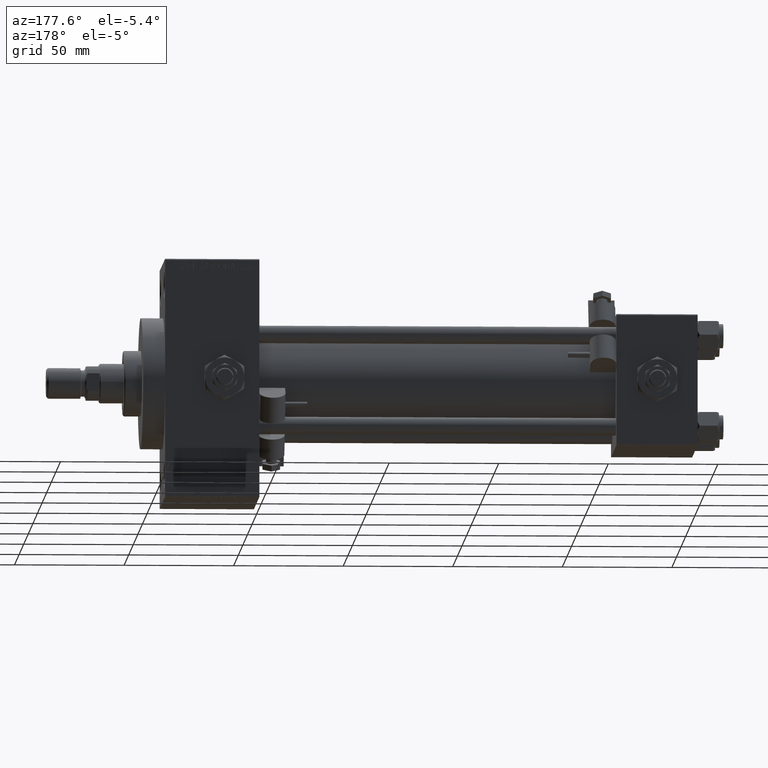
[diagram: clean part render]
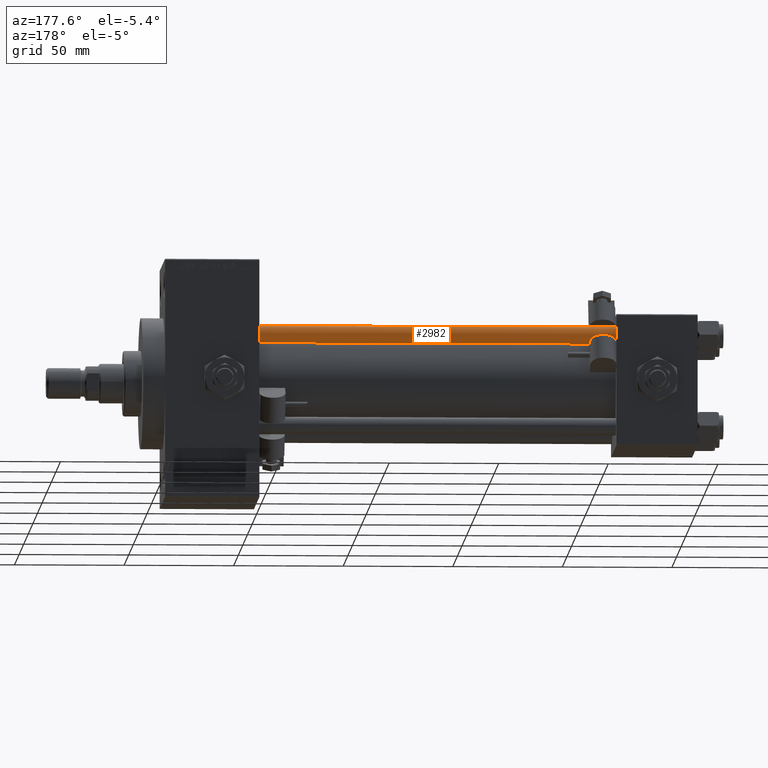
[diagram: same view with one face highlighted and labeled with its STEP entity id]
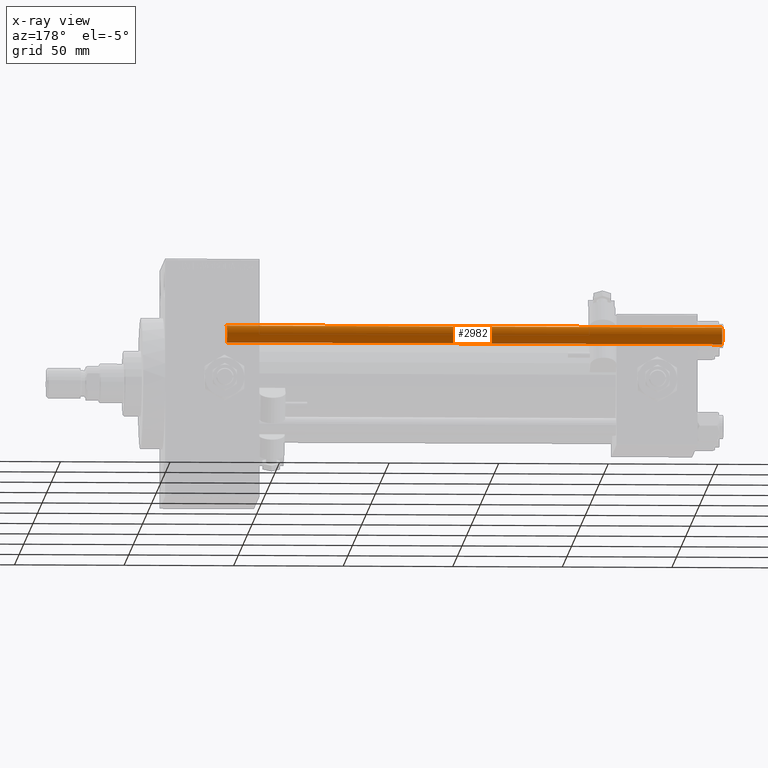
[diagram: x-ray of the same camera — body ghosted, the highlighted face saturated]
A machine part, auxiliary view. The second image highlights one B-rep face of the part: STEP entity #2982.
The next image is the same camera in x-ray: the body ghosted, the highlighted face saturated — about 0% of this face is hidden behind the body in this view.
In plain terms, the highlighted cylindrical surface (edge-blend (fillet) strip) has radius 4 mm, axis along (-1, -0, 0).
Its self-contained STEP definition (entity closure, byte-faithful):
#2982 = ADVANCED_FACE ( 'NONE', ( #29702 ), #21231, .T. ) ;
#4326 = VERTEX_POINT ( 'NONE', #45180 ) ;
#5584 = AXIS2_PLACEMENT_3D ( 'NONE', #41264, #44616, #26083 ) ;
#5624 = DIRECTION ( 'NONE',  ( -0.000000000000000000, -0.000000000000000000, 1.000000000000000000 ) ) ;
#7203 = VERTEX_POINT ( 'NONE', #44539 ) ;
#9725 = DIRECTION ( 'NONE',  ( 1.000000000000000000, 0.000000000000000000, 0.000000000000000000 ) ) ;
#14481 = VERTEX_POINT ( 'NONE', #47849 ) ;
#14918 = CIRCLE ( 'NONE', #39572, 4.000000000000000000 ) ;
#17443 = CARTESIAN_POINT ( 'NONE',  ( 0.000000000000000000, 0.000000000000000000, 0.5000000000002224887 ) ) ;
#17542 = DIRECTION ( 'NONE',  ( -0.000000000000000000, -0.000000000000000000, -1.000000000000000000 ) ) ;
#19760 = VERTEX_POINT ( 'NONE', #35256 ) ;
#20100 = EDGE_CURVE ( 'NONE', #7203, #14481, #14918, .T. ) ;
#21231 = CYLINDRICAL_SURFACE ( 'NONE', #5584, 4.000000000000000000 ) ;
#21729 = EDGE_CURVE ( 'NONE', #4326, #19760, #32263, .T. ) ;
#21952 = ORIENTED_EDGE ( 'NONE', *, *, #21729, .T. ) ;
#26083 = DIRECTION ( 'NONE',  ( -1.000000000000000000, 0.000000000000000000, 0.000000000000000000 ) ) ;
#27395 = EDGE_LOOP ( 'NONE', ( #21952, #39288, #39795, #43298 ) ) ;
#29375 = EDGE_CURVE ( 'NONE', #4326, #14481, #44542, .T. ) ;
#29702 = FACE_OUTER_BOUND ( 'NONE', #27395, .T. ) ;
#30862 = DIRECTION ( 'NONE',  ( 0.000000000000000000, 0.000000000000000000, -1.000000000000000000 ) ) ;
#31119 = CARTESIAN_POINT ( 'NONE',  ( 0.000000000000000000, 0.000000000000000000, 226.5000000000001421 ) ) ;
#31371 = DIRECTION ( 'NONE',  ( -0.000000000000000000, -0.000000000000000000, -1.000000000000000000 ) ) ;
#32263 = CIRCLE ( 'NONE', #42094, 4.000000000000000000 ) ;
#33186 = LINE ( 'NONE', #47053, #33734 ) ;
#33734 = VECTOR ( 'NONE', #31371, 1000.000000000000000 ) ;
#35256 = CARTESIAN_POINT ( 'NONE',  ( 4.000000000000000000, 4.898587196589411843E-16, 226.5000000000001421 ) ) ;
#38119 = VECTOR ( 'NONE', #17542, 1000.000000000000000 ) ;
#39288 = ORIENTED_EDGE ( 'NONE', *, *, #45486, .T. ) ;
#39349 = DIRECTION ( 'NONE',  ( 1.000000000000000000, 0.000000000000000000, 0.000000000000000000 ) ) ;
#39572 = AXIS2_PLACEMENT_3D ( 'NONE', #17443, #5624, #9725 ) ;
#39795 = ORIENTED_EDGE ( 'NONE', *, *, #20100, .T. ) ;
#41264 = CARTESIAN_POINT ( 'NONE',  ( 0.000000000000000000, 0.000000000000000000, 227.0000000000000000 ) ) ;
#42094 = AXIS2_PLACEMENT_3D ( 'NONE', #31119, #30862, #39349 ) ;
#43298 = ORIENTED_EDGE ( 'NONE', *, *, #29375, .F. ) ;
#44292 = CARTESIAN_POINT ( 'NONE',  ( -4.000000000000000000, 0.000000000000000000, 227.0000000000000000 ) ) ;
#44539 = CARTESIAN_POINT ( 'NONE',  ( 4.000000000000000000, 4.898587196589411843E-16, 0.5000000000002224887 ) ) ;
#44542 = LINE ( 'NONE', #44292, #38119 ) ;
#44616 = DIRECTION ( 'NONE',  ( -0.000000000000000000, -0.000000000000000000, -1.000000000000000000 ) ) ;
#45180 = CARTESIAN_POINT ( 'NONE',  ( -4.000000000000000000, 0.000000000000000000, 226.5000000000001421 ) ) ;
#45486 = EDGE_CURVE ( 'NONE', #19760, #7203, #33186, .T. ) ;
#47053 = CARTESIAN_POINT ( 'NONE',  ( 4.000000000000000000, 4.898587196589411843E-16, 227.0000000000000000 ) ) ;
#47849 = CARTESIAN_POINT ( 'NONE',  ( -4.000000000000000000, 0.000000000000000000, 0.5000000000002224887 ) ) ;